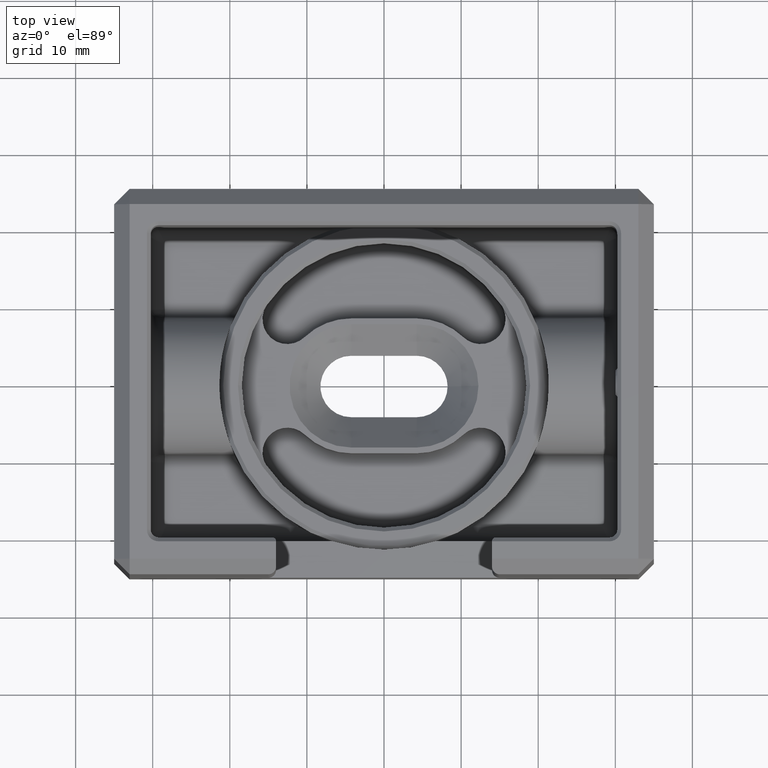
[diagram: clean part render]
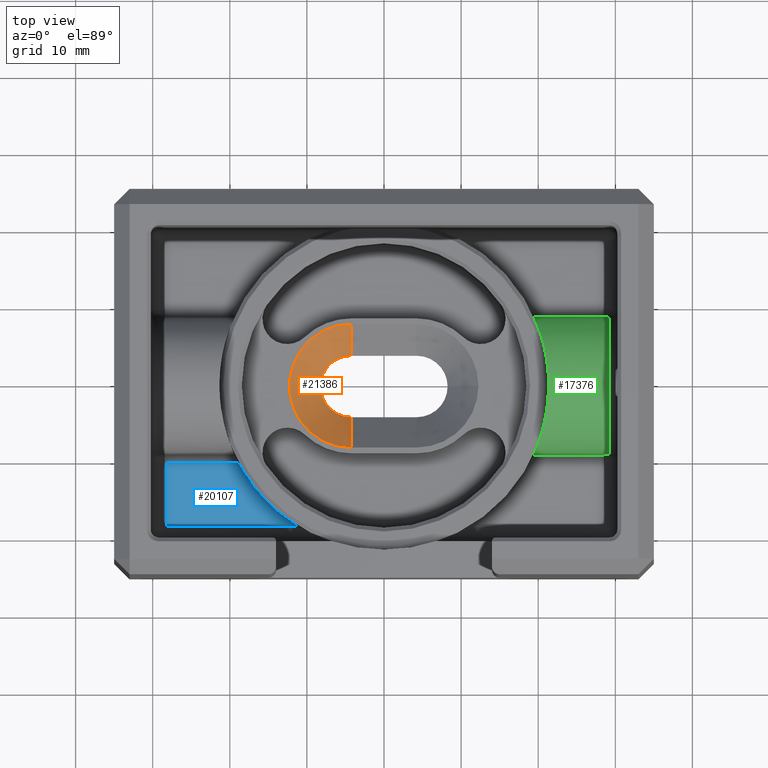
[diagram: same view with three faces highlighted in distinct colors, each labeled with its STEP entity id]
A machine part, top view with three faces highlighted in distinct colors.
Their STEP definitions:

[orange] entity #21386 — the highlighted conical surface has half-angle 45 deg.
#1073 = DIRECTION ( 'NONE',  ( 1.000000000000000000, 0.0000000000000000000, 0.0000000000000000000 ) ) ;
#2736 = EDGE_CURVE ( 'NONE', #11106, #7875, #5443, .T. ) ;
#3005 = VECTOR ( 'NONE', #4527, 999.9999999999998900 ) ;
#3881 = VERTEX_POINT ( 'NONE', #23516 ) ;
#4527 = DIRECTION ( 'NONE',  ( -0.0000000000000000000, -0.7071067811865473500, -0.7071067811865477900 ) ) ;
#5033 = LINE ( 'NONE', #22654, #14207 ) ;
#5047 = EDGE_CURVE ( 'NONE', #7875, #18383, #24919, .T. ) ;
#5117 = ORIENTED_EDGE ( 'NONE', *, *, #6195, .F. ) ;
#5301 = DIRECTION ( 'NONE',  ( -0.0000000000000000000, -0.0000000000000000000, 1.000000000000000000 ) ) ;
#5364 = CARTESIAN_POINT ( 'NONE',  ( -4.250000000000000000, -3.999999999999993300, -2.699999999999997500 ) ) ;
#5443 = LINE ( 'NONE', #12220, #3005 ) ;
#6195 = EDGE_CURVE ( 'NONE', #18383, #3881, #5033, .T. ) ;
#7439 = AXIS2_PLACEMENT_3D ( 'NONE', #16860, #5301, #1073 ) ;
#7875 = VERTEX_POINT ( 'NONE', #8137 ) ;
#8137 = CARTESIAN_POINT ( 'NONE',  ( -4.250000000000000000, 4.000000000000000000, -2.699999999999997500 ) ) ;
#8755 = DIRECTION ( 'NONE',  ( -0.0000000000000000000, -0.0000000000000000000, 1.000000000000000000 ) ) ;
#10056 = FACE_OUTER_BOUND ( 'NONE', #12195, .T. ) ;
#11106 = VERTEX_POINT ( 'NONE', #14654 ) ;
#12195 = EDGE_LOOP ( 'NONE', ( #21061, #5117, #23099, #18574 ) ) ;
#12220 = CARTESIAN_POINT ( 'NONE',  ( -4.250000000000000000, 0.0000000000000000000, -6.700000000000001100 ) ) ;
#12680 = DIRECTION ( 'NONE',  ( 1.000000000000000000, 0.0000000000000000000, 0.0000000000000000000 ) ) ;
#13574 = AXIS2_PLACEMENT_3D ( 'NONE', #22498, #8755, #12680 ) ;
#14207 = VECTOR ( 'NONE', #18576, 999.9999999999998900 ) ;
#14654 = CARTESIAN_POINT ( 'NONE',  ( -4.250000000000000000, 8.000000000000000000, 1.300000000000004300 ) ) ;
#15262 = CONICAL_SURFACE ( 'NONE', #21827, 8.000000000000000000, 0.7853981633974481700 ) ;
#16860 = CARTESIAN_POINT ( 'NONE',  ( -4.250000000000000000, 0.0000000000000000000, 1.300000000000004300 ) ) ;
#17395 = CIRCLE ( 'NONE', #7439, 8.000000000000000000 ) ;
#18308 = DIRECTION ( 'NONE',  ( 1.000000000000000000, 0.0000000000000000000, 0.0000000000000000000 ) ) ;
#18383 = VERTEX_POINT ( 'NONE', #5364 ) ;
#18574 = ORIENTED_EDGE ( 'NONE', *, *, #2736, .F. ) ;
#18576 = DIRECTION ( 'NONE',  ( 0.0000000000000000000, -0.7071067811865473500, 0.7071067811865477900 ) ) ;
#20271 = DIRECTION ( 'NONE',  ( -0.0000000000000000000, -0.0000000000000000000, 1.000000000000000000 ) ) ;
#20352 = CARTESIAN_POINT ( 'NONE',  ( -4.250000000000000000, 0.0000000000000000000, 1.300000000000004300 ) ) ;
#21061 = ORIENTED_EDGE ( 'NONE', *, *, #22330, .T. ) ;
#21386 = ADVANCED_FACE ( 'NONE', ( #10056 ), #15262, .F. ) ;
#21827 = AXIS2_PLACEMENT_3D ( 'NONE', #20352, #20271, #18308 ) ;
#22330 = EDGE_CURVE ( 'NONE', #11106, #3881, #17395, .T. ) ;
#22498 = CARTESIAN_POINT ( 'NONE',  ( -4.250000000000000000, 0.0000000000000000000, -2.699999999999997500 ) ) ;
#22654 = CARTESIAN_POINT ( 'NONE',  ( -4.250000000000000000, 0.0000000000000000000, -6.700000000000001100 ) ) ;
#23099 = ORIENTED_EDGE ( 'NONE', *, *, #5047, .F. ) ;
#23516 = CARTESIAN_POINT ( 'NONE',  ( -4.250000000000000000, -7.999999999999998200, 1.300000000000002500 ) ) ;
#24919 = CIRCLE ( 'NONE', #13574, 3.999999999999999100 ) ;

[blue] entity #20107 — the highlighted planar face has unit normal (0, 0, 1).
#481 = VERTEX_POINT ( 'NONE', #25150 ) ;
#522 = AXIS2_PLACEMENT_3D ( 'NONE', #11490, #21026, #23079 ) ;
#1394 = EDGE_LOOP ( 'NONE', ( #7706, #22485, #4297, #18747 ) ) ;
#1535 = CARTESIAN_POINT ( 'NONE',  ( -28.24999999999998900, -7.260138992051080000E-015, -15.00000000000000400 ) ) ;
#2843 = CARTESIAN_POINT ( 'NONE',  ( -28.24999999999998600, -18.24999999999999600, -15.00000000000000400 ) ) ;
#4297 = ORIENTED_EDGE ( 'NONE', *, *, #16001, .T. ) ;
#4578 = DIRECTION ( 'NONE',  ( -1.000000000000000000, 0.0000000000000000000, 0.0000000000000000000 ) ) ;
#4758 = VECTOR ( 'NONE', #20904, 1000.000000000000000 ) ;
#6670 = PLANE ( 'NONE',  #15111 ) ;
#7405 = CIRCLE ( 'NONE', #522, 21.35000000000000100 ) ;
#7693 = VERTEX_POINT ( 'NONE', #9804 ) ;
#7706 = ORIENTED_EDGE ( 'NONE', *, *, #11333, .T. ) ;
#8662 = DIRECTION ( 'NONE',  ( -0.0000000000000000000, 0.0000000000000000000, 1.000000000000000000 ) ) ;
#8737 = DIRECTION ( 'NONE',  ( 1.000000000000000000, 0.0000000000000000000, 0.0000000000000000000 ) ) ;
#9631 = LINE ( 'NONE', #12440, #18470 ) ;
#9804 = CARTESIAN_POINT ( 'NONE',  ( -28.24999999999998600, -9.949874371066203000, -15.00000000000000400 ) ) ;
#10290 = DIRECTION ( 'NONE',  ( 1.000000000000000000, 0.0000000000000000000, 0.0000000000000000000 ) ) ;
#10411 = CARTESIAN_POINT ( 'NONE',  ( -11.07971118757164300, -18.24999999999999600, -15.00000000000000400 ) ) ;
#11333 = EDGE_CURVE ( 'NONE', #24366, #22686, #12533, .T. ) ;
#11490 = CARTESIAN_POINT ( 'NONE',  ( 0.0000000000000000000, 0.0000000000000000000, -15.00000000000000400 ) ) ;
#12440 = CARTESIAN_POINT ( 'NONE',  ( -28.25000000024147100, -9.949874371066203000, -15.00000000000000400 ) ) ;
#12533 = LINE ( 'NONE', #14093, #14685 ) ;
#14093 = CARTESIAN_POINT ( 'NONE',  ( 0.0000000000000000000, -18.24999999999999600, -15.00000000000000400 ) ) ;
#14210 = LINE ( 'NONE', #1535, #4758 ) ;
#14685 = VECTOR ( 'NONE', #10290, 1000.000000000000000 ) ;
#14858 = EDGE_CURVE ( 'NONE', #7693, #24366, #14210, .T. ) ;
#15111 = AXIS2_PLACEMENT_3D ( 'NONE', #20360, #8662, #8737 ) ;
#16001 = EDGE_CURVE ( 'NONE', #481, #7693, #9631, .T. ) ;
#17486 = EDGE_CURVE ( 'NONE', #22686, #481, #7405, .T. ) ;
#18470 = VECTOR ( 'NONE', #4578, 1000.000000000000000 ) ;
#18747 = ORIENTED_EDGE ( 'NONE', *, *, #14858, .T. ) ;
#20107 = ADVANCED_FACE ( 'NONE', ( #24758 ), #6670, .T. ) ;
#20360 = CARTESIAN_POINT ( 'NONE',  ( 0.0000000000000000000, 0.0000000000000000000, -15.00000000000000400 ) ) ;
#20904 = DIRECTION ( 'NONE',  ( 2.569960705150825400E-016, -1.000000000000000000, 0.0000000000000000000 ) ) ;
#21026 = DIRECTION ( 'NONE',  ( 0.0000000000000000000, -0.0000000000000000000, -1.000000000000000000 ) ) ;
#22485 = ORIENTED_EDGE ( 'NONE', *, *, #17486, .T. ) ;
#22686 = VERTEX_POINT ( 'NONE', #10411 ) ;
#23079 = DIRECTION ( 'NONE',  ( 1.000000000000000000, 1.776356839400250500E-015, 0.0000000000000000000 ) ) ;
#24366 = VERTEX_POINT ( 'NONE', #2843 ) ;
#24758 = FACE_OUTER_BOUND ( 'NONE', #1394, .T. ) ;
#25150 = CARTESIAN_POINT ( 'NONE',  ( -18.88974589559107600, -9.949874371066203000, -15.00000000000000400 ) ) ;

[green] entity #17376 — the highlighted cylindrical surface (partial cylindrical patch) has radius 9 mm, axis along (1, 0, 0).
#50 = CARTESIAN_POINT ( 'NONE',  ( 21.01629101477886200, 3.768508186123944400, -6.822286315489220600 ) ) ;
#277 = CARTESIAN_POINT ( 'NONE',  ( 19.40728424377416800, -8.898520869713557600, -13.53916474196333500 ) ) ;
#974 = LINE ( 'NONE', #1326, #8306 ) ;
#1326 = CARTESIAN_POINT ( 'NONE',  ( -500000.0000000000600, 8.954886933959585300, -14.10000000000000100 ) ) ;
#1331 = CARTESIAN_POINT ( 'NONE',  ( 28.73651032888013600, -8.943751614624147800, -13.99447192875859400 ) ) ;
#1449 = CARTESIAN_POINT ( 'NONE',  ( 21.05973220045990500, -3.518199210605375400, -6.711561277646654700 ) ) ;
#1496 = CARTESIAN_POINT ( 'NONE',  ( 29.25000000000000700, -8.843462658049443100, -13.32394214315631200 ) ) ;
#1640 = EDGE_CURVE ( 'NONE', #17494, #13324, #6112, .T. ) ;
#1667 = ORIENTED_EDGE ( 'NONE', *, *, #18254, .T. ) ;
#1704 = CARTESIAN_POINT ( 'NONE',  ( 21.17883477685786500, -2.747661124834051400, -6.411977707186371900 ) ) ;
#1776 = CARTESIAN_POINT ( 'NONE',  ( 19.73387340681071200, 8.149532362194046100, -11.17101789040719200 ) ) ;
#2085 = CARTESIAN_POINT ( 'NONE',  ( 19.45683690325620300, -8.791069925867468300, -12.99454204343505000 ) ) ;
#2195 = CARTESIAN_POINT ( 'NONE',  ( 20.71109214906109100, 5.205943342459126400, -7.638002613718017000 ) ) ;
#2427 = EDGE_CURVE ( 'NONE', #3300, #4739, #18687, .T. ) ;
#2914 = CARTESIAN_POINT ( 'NONE',  ( 28.25000000000000400, 8.954886933959585300, -14.10000000000000100 ) ) ;
#3001 = VERTEX_POINT ( 'NONE', #5689 ) ;
#3051 = CARTESIAN_POINT ( 'NONE',  ( -500000.0000000000600, 0.0000000000000000000, -15.00000000000000400 ) ) ;
#3300 = VERTEX_POINT ( 'NONE', #21518 ) ;
#3354 = CARTESIAN_POINT ( 'NONE',  ( 29.11422382231543100, -8.901727683899219200, -13.66882793160979900 ) ) ;
#3394 = CARTESIAN_POINT ( 'NONE',  ( 20.92115074386770200, -4.265138914055530300, -7.069991442464843300 ) ) ;
#3527 = CARTESIAN_POINT ( 'NONE',  ( 29.24999999997781700, -8.818163074019446800, -13.20000000000000300 ) ) ;
#3721 = CARTESIAN_POINT ( 'NONE',  ( 19.99819903869928300, 7.484511757979864100, -9.972124418878221900 ) ) ;
#3884 = CARTESIAN_POINT ( 'NONE',  ( 21.32275420703888000, 1.113756396553152700, -6.064794210981214700 ) ) ;
#4061 = ORIENTED_EDGE ( 'NONE', *, *, #21192, .T. ) ;
#4095 = B_SPLINE_CURVE_WITH_KNOTS ( 'NONE', 3,
 ( #24804, #5255, #15356, #7493, #1704, #1449, #20900, #3394, #9294, #11266, #13203, #21150, #15186, #5423, #19113, #6311, #7955, #17887, #18051, #2085, #277, #21611 ),
 .UNSPECIFIED., .F., .F.,
 ( 4, 2, 2, 2, 2, 2, 2, 2, 2, 2, 4 ),
 ( 0.01333907636937384600, 0.01500535072044241300, 0.01667162507151098000, 0.01750476224704526300, 0.01833789942257954200, 0.02000417377364810400, 0.02167044812471666900, 0.02333672247578522800, 0.02416985965131951100, 0.02500299682685379000, 0.02666927117792234500 ),
 .UNSPECIFIED. ) ;
#4129 = CARTESIAN_POINT ( 'NONE',  ( 21.35000000000000100, 2.614584251032007600E-015, -5.999999999999996400 ) ) ;
#4205 = CARTESIAN_POINT ( 'NONE',  ( 21.17890823774314400, 2.746951348641966100, -6.411804253187069600 ) ) ;
#4655 = FACE_OUTER_BOUND ( 'NONE', #14205, .T. ) ;
#4739 = VERTEX_POINT ( 'NONE', #21734 ) ;
#5030 = CARTESIAN_POINT ( 'NONE',  ( 29.25000000000000000, 8.843451007851701500, -13.32388506907657800 ) ) ;
#5110 = CARTESIAN_POINT ( 'NONE',  ( 28.73645151156964100, 8.943767492155080500, -13.99460590312543400 ) ) ;
#5255 = CARTESIAN_POINT ( 'NONE',  ( 21.35000000000000500, -0.5555977042291734300, -5.999999999999994700 ) ) ;
#5418 = CARTESIAN_POINT ( 'NONE',  ( 19.40729494845426500, 8.898497701360309300, -13.53893421975877800 ) ) ;
#5423 = CARTESIAN_POINT ( 'NONE',  ( 19.99784956463685500, -7.485403600454811000, -9.973579751477133800 ) ) ;
#5689 = CARTESIAN_POINT ( 'NONE',  ( 19.38124093034288400, -8.954886933959675900, -14.10000000000090700 ) ) ;
#6052 = DIRECTION ( 'NONE',  ( -1.000000000000000000, -0.0000000000000000000, -0.0000000000000000000 ) ) ;
#6112 = B_SPLINE_CURVE_WITH_KNOTS ( 'NONE', 3,
 ( #24246, #5030, #18633, #12891, #16842, #24398, #5110, #7076, #12558, #2914 ),
 .UNSPECIFIED., .F., .F.,
 ( 4, 2, 2, 2, 4 ),
 ( 2.802690456874157700E-015, 0.0003762538447869766500, 0.0007525076895711505300, 0.001128761534355324400, 0.001505015379139498400 ),
 .UNSPECIFIED. ) ;
#6311 = CARTESIAN_POINT ( 'NONE',  ( 19.73407901632224800, -8.149030121943093600, -11.16999020681402200 ) ) ;
#6770 = CARTESIAN_POINT ( 'NONE',  ( 28.25000000000000400, 8.954886933959585300, -14.10000000000000100 ) ) ;
#6908 = ORIENTED_EDGE ( 'NONE', *, *, #2427, .T. ) ;
#7076 = CARTESIAN_POINT ( 'NONE',  ( 28.50023377446524000, 8.952834839663555800, -14.07883629168298100 ) ) ;
#7364 = CARTESIAN_POINT ( 'NONE',  ( 29.24999999997781700, 8.818163074019446800, -13.20000000000000300 ) ) ;
#7493 = CARTESIAN_POINT ( 'NONE',  ( 21.24201094598230100, -2.215128425605856800, -6.258749738082103800 ) ) ;
#7646 = CARTESIAN_POINT ( 'NONE',  ( 20.23358389697027700, 6.822606813457500000, -9.105130588088551100 ) ) ;
#7894 = CARTESIAN_POINT ( 'NONE',  ( 21.24173192948391500, 2.216760318342332800, -6.259431823548775100 ) ) ;
#7918 = VECTOR ( 'NONE', #17958, 1000.000000000000000 ) ;
#7955 = CARTESIAN_POINT ( 'NONE',  ( 19.68616193680215100, -8.263766801814954400, -11.42413333220245300 ) ) ;
#7974 = CARTESIAN_POINT ( 'NONE',  ( 19.38124093034292600, 8.954886933959585300, -14.10000000000000100 ) ) ;
#8306 = VECTOR ( 'NONE', #13075, 1000.000000000000000 ) ;
#9082 = CARTESIAN_POINT ( 'NONE',  ( 28.25000000000000400, -8.954886933959585300, -14.10000000000000100 ) ) ;
#9294 = CARTESIAN_POINT ( 'NONE',  ( 20.87004969267722400, -4.507861781141081700, -7.205478149625332000 ) ) ;
#9943 = DIRECTION ( 'NONE',  ( 0.0000000000000000000, 0.0000000000000000000, -1.000000000000000000 ) ) ;
#10178 = CARTESIAN_POINT ( 'NONE',  ( -500000.0000000000600, -8.954886933959585300, -14.10000000000000100 ) ) ;
#10907 = VERTEX_POINT ( 'NONE', #21507 ) ;
#11266 = CARTESIAN_POINT ( 'NONE',  ( 20.71058571584269000, -5.208004162583637100, -7.639412557550441500 ) ) ;
#11288 = EDGE_CURVE ( 'NONE', #10907, #3001, #4095, .T. ) ;
#11311 = ORIENTED_EDGE ( 'NONE', *, *, #21854, .T. ) ;
#11521 = CARTESIAN_POINT ( 'NONE',  ( 19.55994885418707000, 8.557927222067480200, -12.20036171299534400 ) ) ;
#11617 = LINE ( 'NONE', #10178, #7918 ) ;
#12211 = EDGE_CURVE ( 'NONE', #19892, #10907, #19926, .T. ) ;
#12558 = CARTESIAN_POINT ( 'NONE',  ( 28.37611426978847400, 8.954886933957842700, -14.09999999999857000 ) ) ;
#12891 = CARTESIAN_POINT ( 'NONE',  ( 29.11406373786897500, 8.901728010701209100, -13.66888830782684900 ) ) ;
#13003 = CARTESIAN_POINT ( 'NONE',  ( 29.03572604572552900, -8.915780838417841600, -13.76892863965231200 ) ) ;
#13075 = DIRECTION ( 'NONE',  ( -1.000000000000000000, -0.0000000000000000000, -0.0000000000000000000 ) ) ;
#13203 = CARTESIAN_POINT ( 'NONE',  ( 20.59514447880020400, -5.642699157302113900, -7.967390566733510800 ) ) ;
#13324 = VERTEX_POINT ( 'NONE', #6770 ) ;
#13756 = CIRCLE ( 'NONE', #13969, 9.000000000000005300 ) ;
#13969 = AXIS2_PLACEMENT_3D ( 'NONE', #17811, #6052, #9943 ) ;
#14205 = EDGE_LOOP ( 'NONE', ( #1667, #22837, #21898, #11311, #6908, #4061, #22378 ) ) ;
#14664 = DIRECTION ( 'NONE',  ( 1.000000000000000000, 0.0000000000000000000, 0.0000000000000000000 ) ) ;
#15186 = CARTESIAN_POINT ( 'NONE',  ( 20.23269301468499000, -6.825202388579064900, -9.108244749538236800 ) ) ;
#15230 = CARTESIAN_POINT ( 'NONE',  ( 29.22144818521764600, -8.865490699811823900, -13.44569967976401000 ) ) ;
#15356 = CARTESIAN_POINT ( 'NONE',  ( 21.32834393135350100, -1.109760387225591700, -6.050995476236923100 ) ) ;
#15446 = CARTESIAN_POINT ( 'NONE',  ( 19.88573255472207900, 7.775132808896821700, -10.43368456235595900 ) ) ;
#15847 = CARTESIAN_POINT ( 'NONE',  ( 21.34457303634223600, 0.5563292019200374300, -6.012850639826669200 ) ) ;
#16842 = CARTESIAN_POINT ( 'NONE',  ( 29.03537210754239000, 8.915841127801089200, -13.76936151564332000 ) ) ;
#17376 = ADVANCED_FACE ( 'NONE', ( #4655 ), #20862, .T. ) ;
#17494 = VERTEX_POINT ( 'NONE', #7364 ) ;
#17564 = CARTESIAN_POINT ( 'NONE',  ( 20.87033471673445800, 4.506528579119114800, -7.204718538391707800 ) ) ;
#17811 = CARTESIAN_POINT ( 'NONE',  ( 29.24999999997781700, 0.0000000000000000000, -15.00000000000000400 ) ) ;
#17887 = CARTESIAN_POINT ( 'NONE',  ( 19.59919895132398400, -8.467952174120812400, -11.93888089786317500 ) ) ;
#17917 = CARTESIAN_POINT ( 'NONE',  ( 21.35000000000000500, 0.2779839422379766200, -5.999999999999996400 ) ) ;
#17958 = DIRECTION ( 'NONE',  ( 1.000000000000000000, 0.0000000000000000000, 0.0000000000000000000 ) ) ;
#18051 = CARTESIAN_POINT ( 'NONE',  ( 19.56000097966843000, -8.557808706422498800, -12.19998157889490500 ) ) ;
#18254 = EDGE_CURVE ( 'NONE', #13324, #19892, #974, .T. ) ;
#18515 = AXIS2_PLACEMENT_3D ( 'NONE', #3051, #14664, #24725 ) ;
#18633 = CARTESIAN_POINT ( 'NONE',  ( 29.22089867167385100, 8.865729828663388500, -13.44711413211836000 ) ) ;
#18687 = B_SPLINE_CURVE_WITH_KNOTS ( 'NONE', 3,
 ( #9082, #21111, #24678, #1331, #24762, #13003, #3354, #15230, #1496, #3527 ),
 .UNSPECIFIED., .F., .F.,
 ( 4, 2, 2, 2, 4 ),
 ( 0.0000000000000000000, 0.0003766965009133376000, 0.0007533930018266751900, 0.001130089502740012700, 0.001506786003653350400 ),
 .UNSPECIFIED. ) ;
#19113 = CARTESIAN_POINT ( 'NONE',  ( 19.88563655484857100, -7.775360121024167600, -10.43420951364791600 ) ) ;
#19611 = CARTESIAN_POINT ( 'NONE',  ( 21.06003257001514600, 3.516372721077665600, -6.710800107319173900 ) ) ;
#19769 = CARTESIAN_POINT ( 'NONE',  ( 20.59581882177837600, 5.640207234661287000, -7.965446988393819300 ) ) ;
#19892 = VERTEX_POINT ( 'NONE', #7974 ) ;
#19926 = B_SPLINE_CURVE_WITH_KNOTS ( 'NONE', 3,
 ( #23183, #5418, #24883, #11521, #23267, #25141, #1776, #15446, #3721, #7646, #25224, #19769, #2195, #17564, #21722, #50, #19611, #4205, #7894, #21555, #3884, #15847, #17917, #4129 ),
 .UNSPECIFIED., .F., .F.,
 ( 4, 2, 2, 2, 2, 2, 2, 2, 2, 2, 2, 4 ),
 ( 1.390281031942915900E-015, 0.001667384546172946300, 0.002501076819258723900, 0.003334769092344500600, 0.005002153638516058200, 0.006669538184687615900, 0.008336922730859171900, 0.009170615003944952000, 0.01000430727703073000, 0.01167169182320228900, 0.01250538409628806700, 0.01333907636937384600 ),
 .UNSPECIFIED. ) ;
#20862 = CYLINDRICAL_SURFACE ( 'NONE', #18515, 9.000000000000005300 ) ;
#20900 = CARTESIAN_POINT ( 'NONE',  ( 21.01596146369803000, -3.770321227718647100, -6.823134859950040500 ) ) ;
#21111 = CARTESIAN_POINT ( 'NONE',  ( 28.37616881114531600, -8.954886933957839200, -14.09999999999856400 ) ) ;
#21150 = CARTESIAN_POINT ( 'NONE',  ( 20.35647728202485900, -6.450880757608080000, -8.700493140581333100 ) ) ;
#21192 = EDGE_CURVE ( 'NONE', #4739, #17494, #13756, .T. ) ;
#21507 = CARTESIAN_POINT ( 'NONE',  ( 21.35000000000000100, 2.614584251032007600E-015, -5.999999999999996400 ) ) ;
#21518 = CARTESIAN_POINT ( 'NONE',  ( 28.25000000000000400, -8.954886933959585300, -14.10000000000000100 ) ) ;
#21555 = CARTESIAN_POINT ( 'NONE',  ( 21.30621776288199200, 1.394008629424741400, -6.104235303801908200 ) ) ;
#21611 = CARTESIAN_POINT ( 'NONE',  ( 19.38124093034288400, -8.954886933959675900, -14.10000000000090700 ) ) ;
#21722 = CARTESIAN_POINT ( 'NONE',  ( 20.92137758504296100, 4.264047597156934300, -7.069391376198180600 ) ) ;
#21734 = CARTESIAN_POINT ( 'NONE',  ( 29.24999999997781700, -8.818163074019446800, -13.20000000000000300 ) ) ;
#21854 = EDGE_CURVE ( 'NONE', #3001, #3300, #11617, .T. ) ;
#21898 = ORIENTED_EDGE ( 'NONE', *, *, #11288, .T. ) ;
#22378 = ORIENTED_EDGE ( 'NONE', *, *, #1640, .T. ) ;
#22837 = ORIENTED_EDGE ( 'NONE', *, *, #12211, .T. ) ;
#23183 = CARTESIAN_POINT ( 'NONE',  ( 19.38124093034292600, 8.954886933959585300, -14.10000000000000100 ) ) ;
#23267 = CARTESIAN_POINT ( 'NONE',  ( 19.59910650519188000, 8.468164037956695400, -11.93949658545662600 ) ) ;
#24246 = CARTESIAN_POINT ( 'NONE',  ( 29.24999999997781700, 8.818163074019446800, -13.20000000000000300 ) ) ;
#24398 = CARTESIAN_POINT ( 'NONE',  ( 28.84676826652419700, 8.936740779618787700, -13.93165626631191500 ) ) ;
#24678 = CARTESIAN_POINT ( 'NONE',  ( 28.50188783282397500, -8.952784868481455000, -14.07835866797902300 ) ) ;
#24725 = DIRECTION ( 'NONE',  ( 0.0000000000000000000, 0.0000000000000000000, -1.000000000000000000 ) ) ;
#24762 = CARTESIAN_POINT ( 'NONE',  ( 28.84755392435618400, -8.936674660437026000, -13.93110773858513200 ) ) ;
#24804 = CARTESIAN_POINT ( 'NONE',  ( 21.35000000000000100, 2.614584251032007600E-015, -5.999999999999996400 ) ) ;
#24883 = CARTESIAN_POINT ( 'NONE',  ( 19.45686017626010800, 8.791015990653985300, -12.99440548535439900 ) ) ;
#25141 = CARTESIAN_POINT ( 'NONE',  ( 19.68594749550325700, 8.264275478218708700, -11.42533440105680500 ) ) ;
#25224 = CARTESIAN_POINT ( 'NONE',  ( 20.35749264248314500, 6.447649486494317900, -8.697247440809150000 ) ) ;